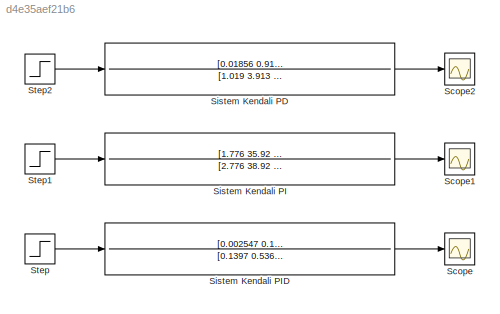
MODEL slx_d4e35aef21b6
KIND model
CONFIG AbsTol = auto
CONFIG EnableMultiTasking = off
CONFIG FixedStep = auto
CONFIG MaxStep = auto
CONFIG MinStep = auto
CONFIG RelTol = 1e-3
CONFIG SampleTimeConstraint = Unconstrained
CONFIG SolverName = VariableStepAuto
CONFIG StartTime = 0.0
CONFIG StopTime = 10.0
BLOCK [Scope] Scope
  Floating = off
  NumInputPorts = 1
  Ports = [1]
  ScopeSpecificationString = Simulink.scopes.TimeScopeBlockCfg('CurrentConfiguration', extmgr.ConfigurationSet(extmgr.Configuration('Core','General UI',true),extmgr.Configuration('Core','Source UI',true),extmgr.Configuration('Sources','WiredSimulink',true),extmgr.Configuration('Visuals','Time Domain',true,'SerializedDisplays',{struct('MinYLimReal','-3432.67037','MaxYLimReal','1875.71142','YLabelReal','','MinYLimMag','  0.0000...<+1408ch>
BLOCK [Scope] Scope1
  Floating = off
  NumInputPorts = 1
  Ports = [1]
  ScopeSpecificationString = Simulink.scopes.TimeScopeBlockCfg('CurrentConfiguration', extmgr.ConfigurationSet(extmgr.Configuration('Core','General UI',true),extmgr.Configuration('Core','Source UI',true),extmgr.Configuration('Sources','WiredSimulink',true,'DataLoggingVariableName','ScopeData1'),extmgr.Configuration('Visuals','Time Domain',true,'SerializedDisplays',{struct('MinYLimReal','-1.91485','MaxYLimReal','17.23362','YLa...<+1428ch>
BLOCK [Scope] Scope2
  Floating = off
  NumInputPorts = 1
  Ports = [1]
  ScopeSpecificationString = Simulink.scopes.TimeScopeBlockCfg('CurrentConfiguration', extmgr.ConfigurationSet(extmgr.Configuration('Core','General UI',true),extmgr.Configuration('Core','Source UI',true),extmgr.Configuration('Sources','WiredSimulink',true,'DataLoggingVariableName','ScopeData2'),extmgr.Configuration('Visuals','Time Domain',true,'SerializedDisplays',{struct('MinYLimReal','-33120.07808','MaxYLimReal','298080.702...<+1454ch>
BLOCK [TransferFcn] Sistem Kendali PD
  Denominator = [1.019 3.913 -7.174]
  Numerator = [0.01856 0.9126 10.83]
BLOCK [TransferFcn] Sistem Kendali PI
  Denominator = [2.776 38.92 -9.881]
  Numerator = [1.776 35.92 8.119]
BLOCK [TransferFcn] Sistem Kendali PID
  Denominator = [0.1397 0.5368 0.4429 10.83]
  Numerator = [0.002547 0.1252 2.026 10.83]
BLOCK [Step] Step
  SampleTime = 0
BLOCK [Step] Step1
  SampleTime = 0
BLOCK [Step] Step2
  SampleTime = 0
LINE Sistem Kendali PD:1 -> Scope2:1
LINE Sistem Kendali PI:1 -> Scope1:1
LINE Sistem Kendali PID:1 -> Scope:1
LINE Step1:1 -> Sistem Kendali PI:1
LINE Step2:1 -> Sistem Kendali PD:1
LINE Step:1 -> Sistem Kendali PID:1
